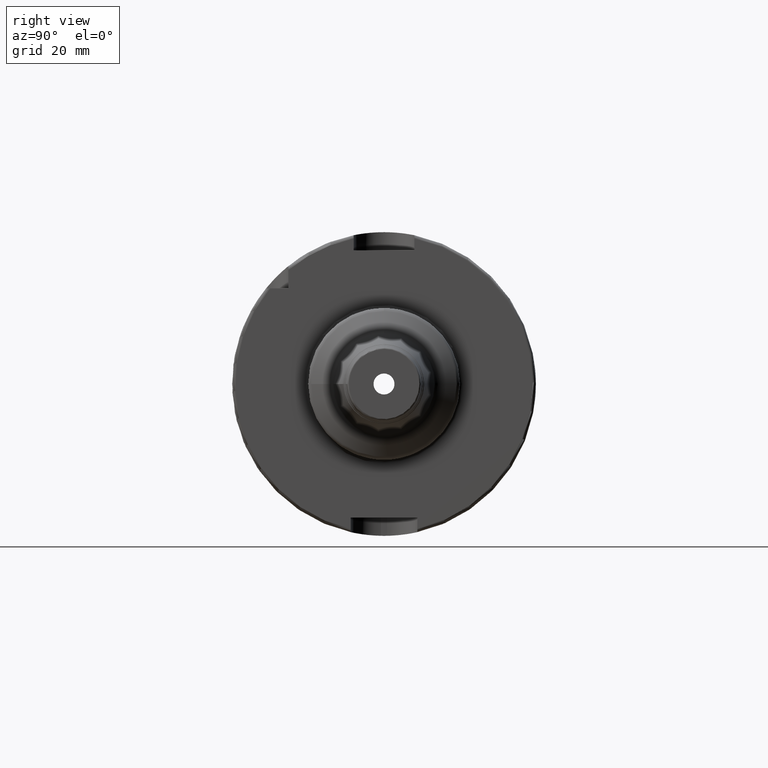
[diagram: clean part render]
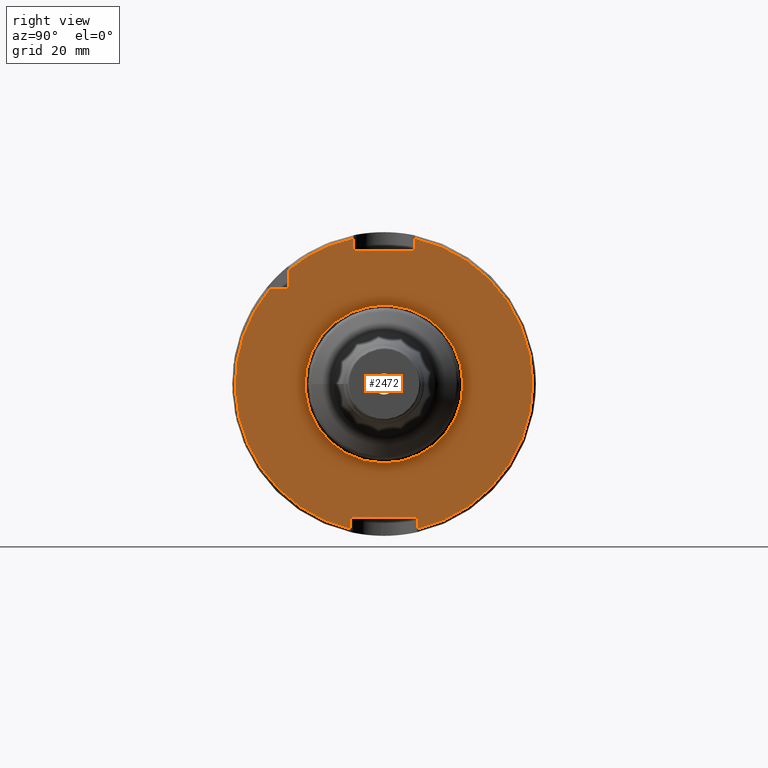
[diagram: same view with one face highlighted and labeled with its STEP entity id]
A machine part, right view. The second image highlights one B-rep face of the part: STEP entity #2472.
In plain terms, the highlighted planar face has unit normal (1, 0, 0).
Its self-contained STEP definition (entity closure, byte-faithful):
#116=FACE_BOUND('',#558,.T.);
#127=PLANE('',#2633);
#166=LINE('',#3840,#278);
#167=LINE('',#3844,#279);
#168=LINE('',#3846,#280);
#169=LINE('',#3848,#281);
#170=LINE('',#3852,#282);
#171=LINE('',#3854,#283);
#172=LINE('',#3856,#284);
#173=LINE('',#3859,#285);
#278=VECTOR('',#3009,10.);
#279=VECTOR('',#3012,10.);
#280=VECTOR('',#3013,10.);
#281=VECTOR('',#3014,10.);
#282=VECTOR('',#3017,10.);
#283=VECTOR('',#3018,10.);
#284=VECTOR('',#3019,10.);
#285=VECTOR('',#3022,10.);
#425=FACE_OUTER_BOUND('',#557,.T.);
#557=EDGE_LOOP('',(#1630,#1631,#1632,#1633,#1634,#1635,#1636,#1637,#1638,
#1639,#1640));
#558=EDGE_LOOP('',(#1641,#1642));
#700=CIRCLE('',#2625,26.);
#701=CIRCLE('',#2626,26.);
#707=CIRCLE('',#2634,49.);
#708=CIRCLE('',#2635,49.);
#709=CIRCLE('',#2636,49.);
#922=VERTEX_POINT('',#3821);
#923=VERTEX_POINT('',#3823);
#928=VERTEX_POINT('',#3838);
#929=VERTEX_POINT('',#3839);
#930=VERTEX_POINT('',#3841);
#931=VERTEX_POINT('',#3843);
#932=VERTEX_POINT('',#3845);
#933=VERTEX_POINT('',#3847);
#934=VERTEX_POINT('',#3849);
#935=VERTEX_POINT('',#3851);
#936=VERTEX_POINT('',#3853);
#937=VERTEX_POINT('',#3855);
#938=VERTEX_POINT('',#3857);
#1207=EDGE_CURVE('',#922,#923,#700,.T.);
#1208=EDGE_CURVE('',#923,#922,#701,.T.);
#1215=EDGE_CURVE('',#928,#929,#166,.T.);
#1216=EDGE_CURVE('',#929,#930,#707,.T.);
#1217=EDGE_CURVE('',#930,#931,#167,.T.);
#1218=EDGE_CURVE('',#931,#932,#168,.T.);
#1219=EDGE_CURVE('',#932,#933,#169,.T.);
#1220=EDGE_CURVE('',#933,#934,#708,.T.);
#1221=EDGE_CURVE('',#934,#935,#170,.T.);
#1222=EDGE_CURVE('',#935,#936,#171,.T.);
#1223=EDGE_CURVE('',#936,#937,#172,.T.);
#1224=EDGE_CURVE('',#937,#938,#709,.T.);
#1225=EDGE_CURVE('',#938,#928,#173,.T.);
#1630=ORIENTED_EDGE('',*,*,#1215,.T.);
#1631=ORIENTED_EDGE('',*,*,#1216,.T.);
#1632=ORIENTED_EDGE('',*,*,#1217,.T.);
#1633=ORIENTED_EDGE('',*,*,#1218,.T.);
#1634=ORIENTED_EDGE('',*,*,#1219,.T.);
#1635=ORIENTED_EDGE('',*,*,#1220,.T.);
#1636=ORIENTED_EDGE('',*,*,#1221,.T.);
#1637=ORIENTED_EDGE('',*,*,#1222,.T.);
#1638=ORIENTED_EDGE('',*,*,#1223,.T.);
#1639=ORIENTED_EDGE('',*,*,#1224,.T.);
#1640=ORIENTED_EDGE('',*,*,#1225,.T.);
#1641=ORIENTED_EDGE('',*,*,#1208,.F.);
#1642=ORIENTED_EDGE('',*,*,#1207,.F.);
#2472=ADVANCED_FACE('',(#425,#116),#127,.T.);
#2625=AXIS2_PLACEMENT_3D('',#3824,#2990,#2991);
#2626=AXIS2_PLACEMENT_3D('',#3825,#2992,#2993);
#2633=AXIS2_PLACEMENT_3D('',#3837,#3007,#3008);
#2634=AXIS2_PLACEMENT_3D('',#3842,#3010,#3011);
#2635=AXIS2_PLACEMENT_3D('',#3850,#3015,#3016);
#2636=AXIS2_PLACEMENT_3D('',#3858,#3020,#3021);
#2990=DIRECTION('center_axis',(1.,0.,0.));
#2991=DIRECTION('ref_axis',(0.,-1.,-1.22464679914735E-16));
#2992=DIRECTION('center_axis',(1.,0.,0.));
#2993=DIRECTION('ref_axis',(0.,-1.,-1.22464679914735E-16));
#3007=DIRECTION('center_axis',(1.,0.,0.));
#3008=DIRECTION('ref_axis',(0.,0.,-1.));
#3009=DIRECTION('',(0.,-1.,0.));
#3010=DIRECTION('center_axis',(1.,0.,0.));
#3011=DIRECTION('ref_axis',(0.,0.,-1.));
#3012=DIRECTION('',(0.,0.,1.));
#3013=DIRECTION('',(0.,1.,0.));
#3014=DIRECTION('',(0.,0.,-1.));
#3015=DIRECTION('center_axis',(1.,0.,0.));
#3016=DIRECTION('ref_axis',(0.,0.,-1.));
#3017=DIRECTION('',(0.,0.,-1.));
#3018=DIRECTION('',(0.,-1.,0.));
#3019=DIRECTION('',(0.,0.,1.));
#3020=DIRECTION('center_axis',(1.,0.,0.));
#3021=DIRECTION('ref_axis',(0.,0.,-1.));
#3022=DIRECTION('',(0.,0.,-1.));
#3821=CARTESIAN_POINT('',(29.,-3.18408167778312E-15,-26.));
#3823=CARTESIAN_POINT('',(29.,26.,6.36816335556624E-15));
#3824=CARTESIAN_POINT('Origin',(29.,0.,0.));
#3825=CARTESIAN_POINT('Origin',(29.,0.,0.));
#3837=CARTESIAN_POINT('Origin',(29.,0.,0.));
#3838=CARTESIAN_POINT('',(29.,-31.5,31.5));
#3839=CARTESIAN_POINT('',(29.,-37.5333185316726,31.5));
#3840=CARTESIAN_POINT('',(29.,-18.25,31.5));
#3841=CARTESIAN_POINT('',(29.,-11.,-47.7493455452533));
#3842=CARTESIAN_POINT('Origin',(29.,0.,0.));
#3843=CARTESIAN_POINT('',(29.,-11.,-44.));
#3844=CARTESIAN_POINT('',(29.,-11.,-22.));
#3845=CARTESIAN_POINT('',(29.,11.,-44.));
#3846=CARTESIAN_POINT('',(29.,-5.55111512312578E-16,-44.));
#3847=CARTESIAN_POINT('',(29.,11.,-47.7493455452533));
#3848=CARTESIAN_POINT('',(29.,11.,-22.));
#3849=CARTESIAN_POINT('',(29.,10.,47.9687398208458));
#3850=CARTESIAN_POINT('Origin',(29.,0.,0.));
#3851=CARTESIAN_POINT('',(29.,10.,44.));
#3852=CARTESIAN_POINT('',(29.,10.,22.));
#3853=CARTESIAN_POINT('',(29.,-10.,44.));
#3854=CARTESIAN_POINT('',(29.,0.,44.));
#3855=CARTESIAN_POINT('',(29.,-10.,47.9687398208458));
#3856=CARTESIAN_POINT('',(29.,-10.,22.));
#3857=CARTESIAN_POINT('',(29.,-31.5,37.5333185316726));
#3858=CARTESIAN_POINT('Origin',(29.,0.,0.));
#3859=CARTESIAN_POINT('',(29.,-31.5,15.75));